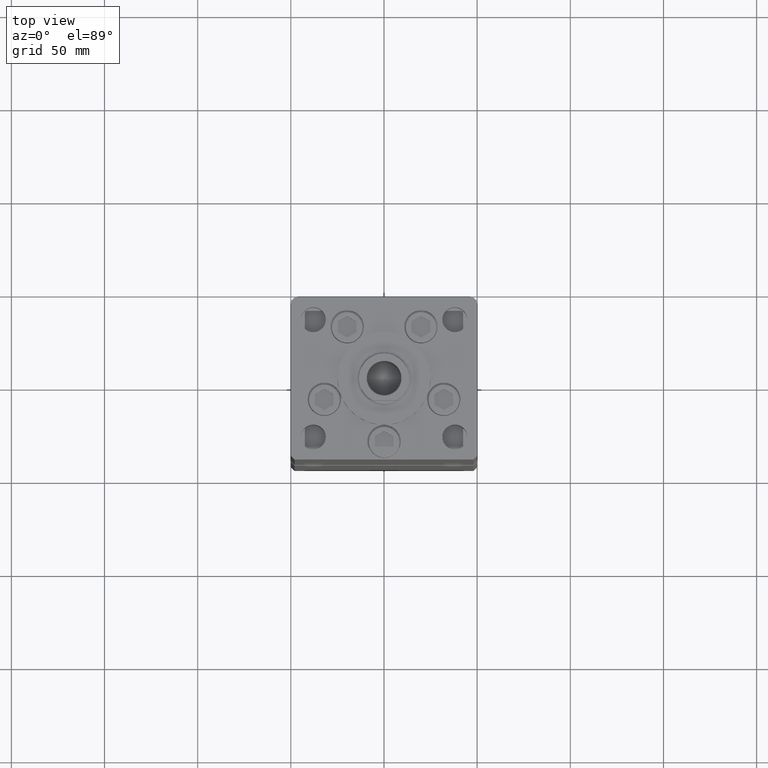
[diagram: clean part render]
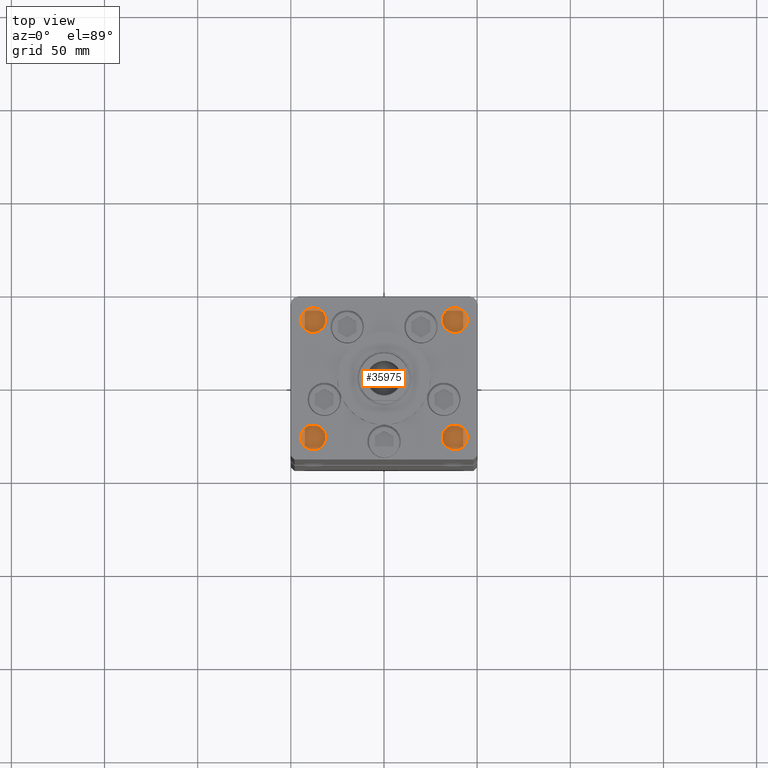
[diagram: same view with one face highlighted and labeled with its STEP entity id]
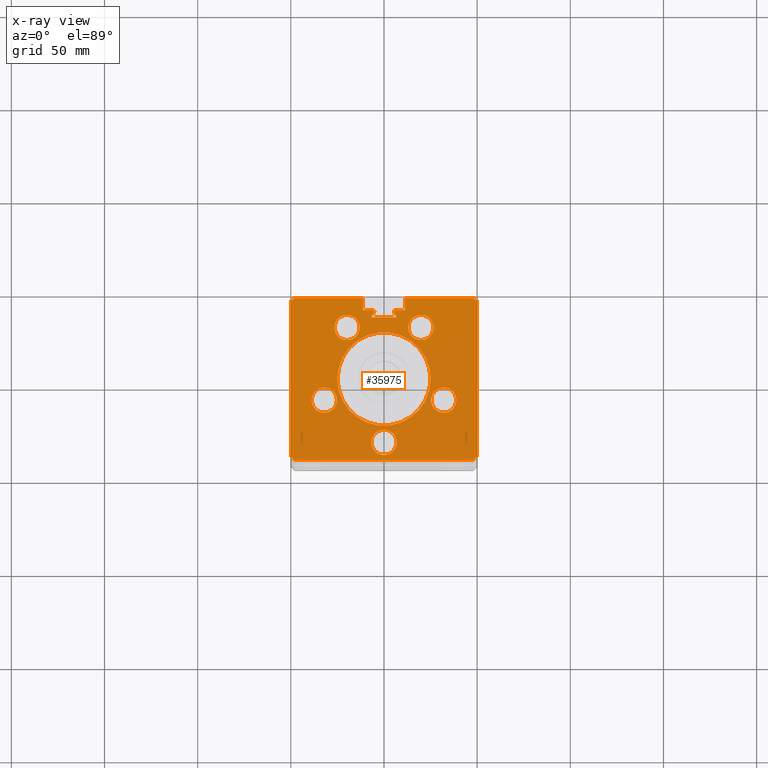
[diagram: x-ray of the same camera — body ghosted, the highlighted face saturated]
A machine part, top view. The second image highlights one B-rep face of the part: STEP entity #35975.
The next image is the same camera in x-ray: the body ghosted, the highlighted face saturated — about 0% of this face is hidden behind the body in this view.
In plain terms, the highlighted planar face has unit normal (0, 0, -1).
Its self-contained STEP definition (entity closure, byte-faithful):
#728 = EDGE_CURVE ( 'NONE', #28112, #38239, #11491, .T. ) ;
#1294 = DIRECTION ( 'NONE',  ( 1.000000000000000000, 0.000000000000000000, 0.000000000000000000 ) ) ;
#1315 = VERTEX_POINT ( 'NONE', #3791 ) ;
#1666 = VERTEX_POINT ( 'NONE', #14931 ) ;
#1694 = VECTOR ( 'NONE', #50273, 1000.000000000000000 ) ;
#1840 = DIRECTION ( 'NONE',  ( 0.000000000000000000, 0.000000000000000000, 1.000000000000000000 ) ) ;
#1846 = AXIS2_PLACEMENT_3D ( 'NONE', #32394, #16010, #28359 ) ;
#1894 = CIRCLE ( 'NONE', #31954, 6.749999999999999112 ) ;
#2059 = VERTEX_POINT ( 'NONE', #28812 ) ;
#2263 = VERTEX_POINT ( 'NONE', #13997 ) ;
#2508 = CARTESIAN_POINT ( 'NONE',  ( -5.249999999999995559, 36.06666666666599497, 318.5000000000000000 ) ) ;
#2786 = VECTOR ( 'NONE', #32028, 1000.000000000000000 ) ;
#3044 = CARTESIAN_POINT ( 'NONE',  ( 0.000000000000000000, 0.000000000000000000, 318.5000000000000000 ) ) ;
#3117 = CARTESIAN_POINT ( 'NONE',  ( 49.99999999999998579, -41.49999999999999289, 318.5000000000000000 ) ) ;
#3135 = ORIENTED_EDGE ( 'NONE', *, *, #16912, .F. ) ;
#3686 = CARTESIAN_POINT ( 'NONE',  ( 47.99999999999998579, -43.50000000000000000, 318.5000000000000000 ) ) ;
#3791 = CARTESIAN_POINT ( 'NONE',  ( -5.375042956467946276, 35.59999999999899245, 318.5000000000000000 ) ) ;
#3804 = DIRECTION ( 'NONE',  ( 1.000000000000000000, 0.000000000000000000, 0.000000000000000000 ) ) ;
#3832 = VERTEX_POINT ( 'NONE', #22457 ) ;
#3926 = VERTEX_POINT ( 'NONE', #14292 ) ;
#4072 = DIRECTION ( 'NONE',  ( 0.000000000000000000, 0.000000000000000000, 1.000000000000000000 ) ) ;
#4105 = CARTESIAN_POINT ( 'NONE',  ( -49.99999999999998579, -41.49999999999999289, 318.5000000000000000 ) ) ;
#4278 = VERTEX_POINT ( 'NONE', #43772 ) ;
#4390 = DIRECTION ( 'NONE',  ( -0.7071067811865474617, -0.7071067811865474617, 0.000000000000000000 ) ) ;
#4624 = DIRECTION ( 'NONE',  ( 0.000000000000000000, 1.000000000000000000, 0.000000000000000000 ) ) ;
#4793 = ORIENTED_EDGE ( 'NONE', *, *, #8536, .F. ) ;
#4880 = CARTESIAN_POINT ( 'NONE',  ( -11.24999999999999645, 37.00000000000000000, 318.5000000000000000 ) ) ;
#5092 = CARTESIAN_POINT ( 'NONE',  ( 32.05550741379015278, -11.33333333333334103, 318.5000000000000000 ) ) ;
#5214 = EDGE_CURVE ( 'NONE', #44600, #16733, #1894, .T. ) ;
#5218 = VECTOR ( 'NONE', #24171, 1000.000000000000114 ) ;
#5246 = AXIS2_PLACEMENT_3D ( 'NONE', #9559, #30791, #10363 ) ;
#5601 = LINE ( 'NONE', #34347, #39825 ) ;
#5705 = ORIENTED_EDGE ( 'NONE', *, *, #40347, .T. ) ;
#5961 = VERTEX_POINT ( 'NONE', #14045 ) ;
#6182 = VERTEX_POINT ( 'NONE', #16969 ) ;
#6375 = DIRECTION ( 'NONE',  ( 1.000000000000000000, 0.000000000000000000, 0.000000000000000000 ) ) ;
#6570 = PLANE ( 'NONE',  #41644 ) ;
#6689 = CARTESIAN_POINT ( 'NONE',  ( -47.99999999999998579, -43.50000000000000000, 318.5000000000000000 ) ) ;
#6758 = EDGE_CURVE ( 'NONE', #16733, #44600, #41839, .T. ) ;
#7034 = ORIENTED_EDGE ( 'NONE', *, *, #50426, .T. ) ;
#7066 = DIRECTION ( 'NONE',  ( 0.000000000000000000, 0.000000000000000000, 1.000000000000000000 ) ) ;
#7345 = CARTESIAN_POINT ( 'NONE',  ( -11.24999999999999645, 43.50000000000000000, 318.5000000000000000 ) ) ;
#7490 = EDGE_CURVE ( 'NONE', #23562, #46238, #32583, .T. ) ;
#7775 = LINE ( 'NONE', #20420, #5218 ) ;
#7823 = AXIS2_PLACEMENT_3D ( 'NONE', #39881, #28022, #52205 ) ;
#8020 = DIRECTION ( 'NONE',  ( 1.000000000000000000, 0.000000000000000000, 0.000000000000000000 ) ) ;
#8536 = EDGE_CURVE ( 'NONE', #5961, #2059, #36099, .T. ) ;
#8891 = ORIENTED_EDGE ( 'NONE', *, *, #48594, .F. ) ;
#8916 = CARTESIAN_POINT ( 'NONE',  ( -25.00000000000000000, 0.000000000000000000, 318.5000000000000000 ) ) ;
#9031 = LINE ( 'NONE', #34017, #17979 ) ;
#9043 = ORIENTED_EDGE ( 'NONE', *, *, #29598, .T. ) ;
#9244 = ORIENTED_EDGE ( 'NONE', *, *, #46327, .F. ) ;
#9413 = AXIS2_PLACEMENT_3D ( 'NONE', #43082, #7066, #18901 ) ;
#9559 = CARTESIAN_POINT ( 'NONE',  ( -32.05550741379015278, -11.33333333333334458, 318.5000000000000000 ) ) ;
#9747 = DIRECTION ( 'NONE',  ( 0.000000000000000000, 0.000000000000000000, -1.000000000000000000 ) ) ;
#10363 = DIRECTION ( 'NONE',  ( 1.000000000000000000, 0.000000000000000000, 0.000000000000000000 ) ) ;
#10508 = CARTESIAN_POINT ( 'NONE',  ( -19.82068048781374259, 27.62499999999999645, 318.5000000000000000 ) ) ;
#10512 = CARTESIAN_POINT ( 'NONE',  ( -25.30550741379015278, -11.33333333333334458, 318.5000000000000000 ) ) ;
#10558 = VECTOR ( 'NONE', #4390, 1000.000000000000114 ) ;
#11007 = DIRECTION ( 'NONE',  ( 1.000000000000000000, 0.000000000000000000, 0.000000000000000000 ) ) ;
#11401 = CARTESIAN_POINT ( 'NONE',  ( -19.82068048781374259, 27.62499999999999645, 318.5000000000000000 ) ) ;
#11475 = CIRCLE ( 'NONE', #32924, 6.749999999999999112 ) ;
#11491 = LINE ( 'NONE', #39988, #12978 ) ;
#11641 = LINE ( 'NONE', #28017, #15489 ) ;
#11711 = EDGE_CURVE ( 'NONE', #27137, #15898, #9031, .T. ) ;
#11934 = ORIENTED_EDGE ( 'NONE', *, *, #33200, .T. ) ;
#12116 = DIRECTION ( 'NONE',  ( 1.000000000000000000, 0.000000000000000000, 0.000000000000000000 ) ) ;
#12191 = CARTESIAN_POINT ( 'NONE',  ( -6.749999999999997335, -34.00000000000000000, 318.5000000000000000 ) ) ;
#12437 = LINE ( 'NONE', #48694, #48242 ) ;
#12740 = VECTOR ( 'NONE', #4624, 1000.000000000000000 ) ;
#12978 = VECTOR ( 'NONE', #43736, 1000.000000000000114 ) ;
#13198 = VERTEX_POINT ( 'NONE', #10512 ) ;
#13253 = ORIENTED_EDGE ( 'NONE', *, *, #28627, .T. ) ;
#13272 = ORIENTED_EDGE ( 'NONE', *, *, #28769, .F. ) ;
#13873 = DIRECTION ( 'NONE',  ( 1.000000000000000000, 0.000000000000000000, 0.000000000000000000 ) ) ;
#13997 = CARTESIAN_POINT ( 'NONE',  ( -38.80550741379015278, -11.33333333333334458, 318.5000000000000000 ) ) ;
#14045 = CARTESIAN_POINT ( 'NONE',  ( 11.24999999999998934, 43.50000000000000000, 318.5000000000000000 ) ) ;
#14292 = CARTESIAN_POINT ( 'NONE',  ( 49.99999999999998579, -41.49999999999999289, 318.5000000000000000 ) ) ;
#14722 = EDGE_CURVE ( 'NONE', #28071, #42560, #23958, .T. ) ;
#14741 = AXIS2_PLACEMENT_3D ( 'NONE', #10508, #23392, #47320 ) ;
#14753 = EDGE_LOOP ( 'NONE', ( #41346, #31444 ) ) ;
#14905 = FACE_BOUND ( 'NONE', #43939, .T. ) ;
#14925 = CIRCLE ( 'NONE', #42368, 6.749999999999999112 ) ;
#14931 = CARTESIAN_POINT ( 'NONE',  ( 25.00000000000000000, 3.061616997868383043E-15, 318.5000000000000000 ) ) ;
#15046 = CARTESIAN_POINT ( 'NONE',  ( 2.081899558550500280E-15, -34.00000000000000000, 318.5000000000000000 ) ) ;
#15489 = VECTOR ( 'NONE', #44403, 1000.000000000000000 ) ;
#15745 = CARTESIAN_POINT ( 'NONE',  ( 5.375042956467946276, 35.59999999999899245, 318.5000000000000000 ) ) ;
#15898 = VERTEX_POINT ( 'NONE', #18623 ) ;
#16010 = DIRECTION ( 'NONE',  ( 0.000000000000000000, 0.000000000000000000, -1.000000000000000000 ) ) ;
#16035 = VERTEX_POINT ( 'NONE', #33103 ) ;
#16079 = EDGE_CURVE ( 'NONE', #2059, #33553, #37405, .T. ) ;
#16452 = CARTESIAN_POINT ( 'NONE',  ( 48.00000000000000711, 43.50000000000000000, 318.5000000000000000 ) ) ;
#16550 = CIRCLE ( 'NONE', #17424, 0.9333333333339999260 ) ;
#16733 = VERTEX_POINT ( 'NONE', #28067 ) ;
#16739 = CARTESIAN_POINT ( 'NONE',  ( -11.24999999999999645, 0.000000000000000000, 318.5000000000000000 ) ) ;
#16912 = EDGE_CURVE ( 'NONE', #42560, #28071, #30884, .T. ) ;
#16969 = CARTESIAN_POINT ( 'NONE',  ( -13.07068048781374259, 27.62499999999999645, 318.5000000000000000 ) ) ;
#17305 = CARTESIAN_POINT ( 'NONE',  ( -48.00000000000000711, 43.50000000000000000, 318.5000000000000000 ) ) ;
#17316 = CIRCLE ( 'NONE', #5246, 6.749999999999999112 ) ;
#17337 = EDGE_CURVE ( 'NONE', #33553, #3926, #11641, .T. ) ;
#17424 = AXIS2_PLACEMENT_3D ( 'NONE', #30171, #9747, #29392 ) ;
#17446 = VECTOR ( 'NONE', #34541, 1000.000000000000000 ) ;
#17908 = CARTESIAN_POINT ( 'NONE',  ( 6.750000000000000888, -34.00000000000000000, 318.5000000000000000 ) ) ;
#17934 = LINE ( 'NONE', #46690, #20859 ) ;
#17979 = VECTOR ( 'NONE', #25424, 1000.000000000000000 ) ;
#17981 = DIRECTION ( 'NONE',  ( 1.000000000000000000, 0.000000000000000000, 0.000000000000000000 ) ) ;
#18502 = CARTESIAN_POINT ( 'NONE',  ( -26.57068048781373903, 27.62499999999999645, 318.5000000000000000 ) ) ;
#18623 = CARTESIAN_POINT ( 'NONE',  ( 6.183333333333996151, 37.00000000000000000, 318.5000000000000000 ) ) ;
#18639 = VERTEX_POINT ( 'NONE', #3686 ) ;
#18650 = CARTESIAN_POINT ( 'NONE',  ( 11.24999999999999645, 0.000000000000000000, 318.5000000000000000 ) ) ;
#18679 = AXIS2_PLACEMENT_3D ( 'NONE', #23973, #4072, #3804 ) ;
#18901 = DIRECTION ( 'NONE',  ( 1.000000000000000000, 0.000000000000000000, 0.000000000000000000 ) ) ;
#18926 = FACE_BOUND ( 'NONE', #40299, .T. ) ;
#19015 = CARTESIAN_POINT ( 'NONE',  ( -50.00000000000001421, 41.49999999999999289, 318.5000000000000000 ) ) ;
#19330 = VECTOR ( 'NONE', #44162, 1000.000000000000000 ) ;
#19346 = EDGE_LOOP ( 'NONE', ( #7034, #40043, #45656, #11934, #13253, #26213, #19967, #21444, #34095, #49374, #4793, #22391, #35307, #49706, #9043, #42127, #5705, #29132, #42757 ) ) ;
#19938 = CARTESIAN_POINT ( 'NONE',  ( 13.07068048781374081, 27.62500000000000000, 318.5000000000000000 ) ) ;
#19967 = ORIENTED_EDGE ( 'NONE', *, *, #27574, .T. ) ;
#20080 = VECTOR ( 'NONE', #25881, 1000.000000000000000 ) ;
#20138 = DIRECTION ( 'NONE',  ( 1.000000000000000000, 0.000000000000000000, 0.000000000000000000 ) ) ;
#20420 = CARTESIAN_POINT ( 'NONE',  ( -19.44653440471351757, 11.22746187336663404, 318.5000000000000000 ) ) ;
#20448 = CARTESIAN_POINT ( 'NONE',  ( -32.05550741379015278, -11.33333333333334458, 318.5000000000000000 ) ) ;
#20754 = CIRCLE ( 'NONE', #1846, 0.9333333333339999260 ) ;
#20859 = VECTOR ( 'NONE', #42910, 1000.000000000000114 ) ;
#21392 = CARTESIAN_POINT ( 'NONE',  ( 11.24999999999999645, 37.00000000000000000, 318.5000000000000000 ) ) ;
#21403 = CARTESIAN_POINT ( 'NONE',  ( -11.24999999999999645, 43.50000000000000000, 318.5000000000000000 ) ) ;
#21444 = ORIENTED_EDGE ( 'NONE', *, *, #50933, .F. ) ;
#21600 = EDGE_CURVE ( 'NONE', #35196, #36019, #20754, .T. ) ;
#22038 = EDGE_LOOP ( 'NONE', ( #13272, #45799 ) ) ;
#22391 = ORIENTED_EDGE ( 'NONE', *, *, #35117, .T. ) ;
#22457 = CARTESIAN_POINT ( 'NONE',  ( -48.00000000000000711, 43.50000000000000000, 318.5000000000000000 ) ) ;
#22492 = ORIENTED_EDGE ( 'NONE', *, *, #6758, .F. ) ;
#22573 = VERTEX_POINT ( 'NONE', #8916 ) ;
#22633 = CARTESIAN_POINT ( 'NONE',  ( -6.876153656360465050, 32.99999999999986500, 318.5000000000000000 ) ) ;
#23088 = DIRECTION ( 'NONE',  ( 0.000000000000000000, 0.000000000000000000, 1.000000000000000000 ) ) ;
#23392 = DIRECTION ( 'NONE',  ( 0.000000000000000000, 0.000000000000000000, 1.000000000000000000 ) ) ;
#23533 = EDGE_CURVE ( 'NONE', #3832, #46238, #12437, .T. ) ;
#23562 = VERTEX_POINT ( 'NONE', #4880 ) ;
#23958 = CIRCLE ( 'NONE', #39434, 6.749999999999999112 ) ;
#23973 = CARTESIAN_POINT ( 'NONE',  ( 19.82068048781374259, 27.62500000000000000, 318.5000000000000000 ) ) ;
#24159 = CIRCLE ( 'NONE', #14741, 6.749999999999999112 ) ;
#24165 = EDGE_CURVE ( 'NONE', #4278, #16035, #29420, .T. ) ;
#24171 = DIRECTION ( 'NONE',  ( 0.4999999999999987788, 0.8660254037844392627, 0.000000000000000000 ) ) ;
#24295 = CIRCLE ( 'NONE', #52602, 0.9333333333339999260 ) ;
#25121 = EDGE_LOOP ( 'NONE', ( #22492, #41922 ) ) ;
#25223 = ORIENTED_EDGE ( 'NONE', *, *, #53087, .F. ) ;
#25424 = DIRECTION ( 'NONE',  ( -1.000000000000000000, 0.000000000000000000, 0.000000000000000000 ) ) ;
#25881 = DIRECTION ( 'NONE',  ( -0.7071067811865487940, -0.7071067811865463515, 0.000000000000000000 ) ) ;
#26213 = ORIENTED_EDGE ( 'NONE', *, *, #728, .T. ) ;
#26776 = CIRCLE ( 'NONE', #41359, 6.749999999999999112 ) ;
#26789 = CARTESIAN_POINT ( 'NONE',  ( 0.000000000000000000, 0.000000000000000000, 318.5000000000000000 ) ) ;
#26983 = LINE ( 'NONE', #18650, #19330 ) ;
#27137 = VERTEX_POINT ( 'NONE', #21392 ) ;
#27574 = EDGE_CURVE ( 'NONE', #38239, #18639, #5601, .T. ) ;
#27768 = CARTESIAN_POINT ( 'NONE',  ( -6.183333333333996151, 37.00000000000000000, 318.5000000000000000 ) ) ;
#27777 = DIRECTION ( 'NONE',  ( 0.000000000000000000, 0.000000000000000000, 1.000000000000000000 ) ) ;
#27887 = CARTESIAN_POINT ( 'NONE',  ( 32.05550741379015278, -11.33333333333334103, 318.5000000000000000 ) ) ;
#28017 = CARTESIAN_POINT ( 'NONE',  ( 50.00000000000001421, 41.49999999999999289, 318.5000000000000000 ) ) ;
#28021 = EDGE_CURVE ( 'NONE', #6182, #40453, #14925, .T. ) ;
#28022 = DIRECTION ( 'NONE',  ( -0.000000000000000000, 0.000000000000000000, 1.000000000000000000 ) ) ;
#28067 = CARTESIAN_POINT ( 'NONE',  ( 26.57068048781373903, 27.62500000000000000, 318.5000000000000000 ) ) ;
#28071 = VERTEX_POINT ( 'NONE', #12191 ) ;
#28112 = VERTEX_POINT ( 'NONE', #4105 ) ;
#28359 = DIRECTION ( 'NONE',  ( 1.000000000000000000, 0.000000000000000000, 0.000000000000000000 ) ) ;
#28627 = EDGE_CURVE ( 'NONE', #51894, #28112, #52624, .T. ) ;
#28769 = EDGE_CURVE ( 'NONE', #22573, #1666, #41532, .T. ) ;
#28812 = CARTESIAN_POINT ( 'NONE',  ( 48.00000000000000711, 43.50000000000000000, 318.5000000000000000 ) ) ;
#28970 = VERTEX_POINT ( 'NONE', #22633 ) ;
#28973 = CARTESIAN_POINT ( 'NONE',  ( -50.00000000000001421, 41.49999999999999289, 318.5000000000000000 ) ) ;
#29132 = ORIENTED_EDGE ( 'NONE', *, *, #30433, .F. ) ;
#29305 = DIRECTION ( 'NONE',  ( 0.000000000000000000, 0.000000000000000000, 1.000000000000000000 ) ) ;
#29392 = DIRECTION ( 'NONE',  ( 1.000000000000000000, 0.000000000000000000, 0.000000000000000000 ) ) ;
#29398 = LINE ( 'NONE', #17305, #20080 ) ;
#29420 = CIRCLE ( 'NONE', #31988, 6.749999999999999112 ) ;
#29526 = VECTOR ( 'NONE', #36244, 1000.000000000000000 ) ;
#29598 = EDGE_CURVE ( 'NONE', #37773, #44201, #17934, .T. ) ;
#29885 = EDGE_CURVE ( 'NONE', #44201, #28970, #38049, .T. ) ;
#30171 = CARTESIAN_POINT ( 'NONE',  ( 6.183333333333996151, 36.06666666666599497, 318.5000000000000000 ) ) ;
#30433 = EDGE_CURVE ( 'NONE', #36019, #1315, #24295, .T. ) ;
#30791 = DIRECTION ( 'NONE',  ( 0.000000000000000000, 0.000000000000000000, 1.000000000000000000 ) ) ;
#30884 = CIRCLE ( 'NONE', #9413, 6.749999999999999112 ) ;
#31016 = CIRCLE ( 'NONE', #7823, 25.00000000000000000 ) ;
#31444 = ORIENTED_EDGE ( 'NONE', *, *, #24165, .F. ) ;
#31954 = AXIS2_PLACEMENT_3D ( 'NONE', #36243, #44825, #8020 ) ;
#31988 = AXIS2_PLACEMENT_3D ( 'NONE', #27887, #34290, #13873 ) ;
#32028 = DIRECTION ( 'NONE',  ( -1.000000000000000000, 0.000000000000000000, 0.000000000000000000 ) ) ;
#32071 = DIRECTION ( 'NONE',  ( 1.000000000000000000, 0.000000000000000000, 0.000000000000000000 ) ) ;
#32080 = FACE_BOUND ( 'NONE', #22038, .T. ) ;
#32394 = CARTESIAN_POINT ( 'NONE',  ( -6.183333333333996151, 36.06666666666599497, 318.5000000000000000 ) ) ;
#32583 = LINE ( 'NONE', #16739, #12740 ) ;
#32759 = CARTESIAN_POINT ( 'NONE',  ( -6.183333333333996151, 36.06666666666599497, 318.5000000000000000 ) ) ;
#32924 = AXIS2_PLACEMENT_3D ( 'NONE', #20448, #29305, #12116 ) ;
#33103 = CARTESIAN_POINT ( 'NONE',  ( 38.80550741379015278, -11.33333333333334103, 318.5000000000000000 ) ) ;
#33200 = EDGE_CURVE ( 'NONE', #3832, #51894, #29398, .T. ) ;
#33553 = VERTEX_POINT ( 'NONE', #45396 ) ;
#34017 = CARTESIAN_POINT ( 'NONE',  ( 0.000000000000000000, 37.00000000000000000, 318.5000000000000000 ) ) ;
#34095 = ORIENTED_EDGE ( 'NONE', *, *, #17337, .F. ) ;
#34290 = DIRECTION ( 'NONE',  ( 0.000000000000000000, 0.000000000000000000, 1.000000000000000000 ) ) ;
#34347 = CARTESIAN_POINT ( 'NONE',  ( -47.99999999999998579, -43.50000000000000000, 318.5000000000000000 ) ) ;
#34541 = DIRECTION ( 'NONE',  ( -1.000000000000000000, 0.000000000000000000, 0.000000000000000000 ) ) ;
#34935 = ORIENTED_EDGE ( 'NONE', *, *, #28021, .F. ) ;
#35117 = EDGE_CURVE ( 'NONE', #5961, #27137, #26983, .T. ) ;
#35196 = VERTEX_POINT ( 'NONE', #27768 ) ;
#35307 = ORIENTED_EDGE ( 'NONE', *, *, #11711, .T. ) ;
#35523 = AXIS2_PLACEMENT_3D ( 'NONE', #26789, #43181, #6375 ) ;
#35975 = ADVANCED_FACE ( 'NONE', ( #39894, #14905, #43640, #51428, #18926, #48192, #32080 ), #6570, .F. ) ;
#36019 = VERTEX_POINT ( 'NONE', #2508 ) ;
#36099 = LINE ( 'NONE', #7345, #46214 ) ;
#36243 = CARTESIAN_POINT ( 'NONE',  ( 19.82068048781374259, 27.62500000000000000, 318.5000000000000000 ) ) ;
#36244 = DIRECTION ( 'NONE',  ( 3.344045254895050973E-16, -1.000000000000000000, 0.000000000000000000 ) ) ;
#36529 = EDGE_LOOP ( 'NONE', ( #25223, #9244 ) ) ;
#37405 = LINE ( 'NONE', #16452, #1694 ) ;
#37578 = CARTESIAN_POINT ( 'NONE',  ( 6.876153656360465050, 32.99999999999986500, 318.5000000000000000 ) ) ;
#37773 = VERTEX_POINT ( 'NONE', #15745 ) ;
#38049 = LINE ( 'NONE', #46631, #17446 ) ;
#38054 = ORIENTED_EDGE ( 'NONE', *, *, #14722, .F. ) ;
#38239 = VERTEX_POINT ( 'NONE', #6689 ) ;
#39434 = AXIS2_PLACEMENT_3D ( 'NONE', #15046, #23088, #11007 ) ;
#39825 = VECTOR ( 'NONE', #1294, 1000.000000000000000 ) ;
#39881 = CARTESIAN_POINT ( 'NONE',  ( 0.000000000000000000, 0.000000000000000000, 318.5000000000000000 ) ) ;
#39894 = FACE_BOUND ( 'NONE', #36529, .T. ) ;
#39988 = CARTESIAN_POINT ( 'NONE',  ( -49.99999999999998579, -41.49999999999999289, 318.5000000000000000 ) ) ;
#40043 = ORIENTED_EDGE ( 'NONE', *, *, #7490, .T. ) ;
#40299 = EDGE_LOOP ( 'NONE', ( #34935, #8891 ) ) ;
#40347 = EDGE_CURVE ( 'NONE', #28970, #1315, #7775, .T. ) ;
#40453 = VERTEX_POINT ( 'NONE', #18502 ) ;
#41211 = LINE ( 'NONE', #3117, #10558 ) ;
#41346 = ORIENTED_EDGE ( 'NONE', *, *, #43157, .F. ) ;
#41359 = AXIS2_PLACEMENT_3D ( 'NONE', #5092, #1840, #17981 ) ;
#41532 = CIRCLE ( 'NONE', #35523, 25.00000000000000000 ) ;
#41644 = AXIS2_PLACEMENT_3D ( 'NONE', #3044, #47938, #43905 ) ;
#41816 = EDGE_CURVE ( 'NONE', #1666, #22573, #31016, .T. ) ;
#41839 = CIRCLE ( 'NONE', #18679, 6.749999999999999112 ) ;
#41922 = ORIENTED_EDGE ( 'NONE', *, *, #5214, .F. ) ;
#42127 = ORIENTED_EDGE ( 'NONE', *, *, #29885, .T. ) ;
#42368 = AXIS2_PLACEMENT_3D ( 'NONE', #11401, #27777, #44172 ) ;
#42560 = VERTEX_POINT ( 'NONE', #17908 ) ;
#42757 = ORIENTED_EDGE ( 'NONE', *, *, #21600, .F. ) ;
#42910 = DIRECTION ( 'NONE',  ( 0.4999999999999987788, -0.8660254037844392627, 0.000000000000000000 ) ) ;
#43082 = CARTESIAN_POINT ( 'NONE',  ( 2.081899558550500280E-15, -34.00000000000000000, 318.5000000000000000 ) ) ;
#43157 = EDGE_CURVE ( 'NONE', #16035, #4278, #26776, .T. ) ;
#43181 = DIRECTION ( 'NONE',  ( -0.000000000000000000, 0.000000000000000000, 1.000000000000000000 ) ) ;
#43640 = FACE_BOUND ( 'NONE', #14753, .T. ) ;
#43736 = DIRECTION ( 'NONE',  ( 0.7071067811865474617, -0.7071067811865474617, 0.000000000000000000 ) ) ;
#43772 = CARTESIAN_POINT ( 'NONE',  ( 25.30550741379015278, -11.33333333333334103, 318.5000000000000000 ) ) ;
#43905 = DIRECTION ( 'NONE',  ( -1.000000000000000000, 0.000000000000000000, -0.000000000000000000 ) ) ;
#43939 = EDGE_LOOP ( 'NONE', ( #3135, #38054 ) ) ;
#44162 = DIRECTION ( 'NONE',  ( -0.000000000000000000, -1.000000000000000000, 0.000000000000000000 ) ) ;
#44172 = DIRECTION ( 'NONE',  ( 1.000000000000000000, 0.000000000000000000, 0.000000000000000000 ) ) ;
#44201 = VERTEX_POINT ( 'NONE', #37578 ) ;
#44403 = DIRECTION ( 'NONE',  ( -3.344045254895050973E-16, -1.000000000000000000, 0.000000000000000000 ) ) ;
#44600 = VERTEX_POINT ( 'NONE', #19938 ) ;
#44825 = DIRECTION ( 'NONE',  ( 0.000000000000000000, 0.000000000000000000, 1.000000000000000000 ) ) ;
#45396 = CARTESIAN_POINT ( 'NONE',  ( 50.00000000000001421, 41.49999999999999289, 318.5000000000000000 ) ) ;
#45656 = ORIENTED_EDGE ( 'NONE', *, *, #23533, .F. ) ;
#45799 = ORIENTED_EDGE ( 'NONE', *, *, #41816, .F. ) ;
#46214 = VECTOR ( 'NONE', #32071, 1000.000000000000000 ) ;
#46238 = VERTEX_POINT ( 'NONE', #21403 ) ;
#46327 = EDGE_CURVE ( 'NONE', #2263, #13198, #17316, .T. ) ;
#46631 = CARTESIAN_POINT ( 'NONE',  ( 0.000000000000000000, 32.99999999999986500, 318.5000000000000000 ) ) ;
#46690 = CARTESIAN_POINT ( 'NONE',  ( 19.44653440471351757, 11.22746187336663404, 318.5000000000000000 ) ) ;
#47320 = DIRECTION ( 'NONE',  ( 1.000000000000000000, 0.000000000000000000, 0.000000000000000000 ) ) ;
#47938 = DIRECTION ( 'NONE',  ( 0.000000000000000000, 0.000000000000000000, -1.000000000000000000 ) ) ;
#48192 = FACE_OUTER_BOUND ( 'NONE', #19346, .T. ) ;
#48242 = VECTOR ( 'NONE', #48962, 1000.000000000000000 ) ;
#48594 = EDGE_CURVE ( 'NONE', #40453, #6182, #24159, .T. ) ;
#48694 = CARTESIAN_POINT ( 'NONE',  ( -11.24999999999999645, 43.50000000000000000, 318.5000000000000000 ) ) ;
#48929 = CARTESIAN_POINT ( 'NONE',  ( 0.000000000000000000, 37.00000000000000000, 318.5000000000000000 ) ) ;
#48962 = DIRECTION ( 'NONE',  ( 1.000000000000000000, 0.000000000000000000, 0.000000000000000000 ) ) ;
#49143 = DIRECTION ( 'NONE',  ( 0.000000000000000000, 0.000000000000000000, -1.000000000000000000 ) ) ;
#49374 = ORIENTED_EDGE ( 'NONE', *, *, #16079, .F. ) ;
#49706 = ORIENTED_EDGE ( 'NONE', *, *, #51042, .F. ) ;
#50273 = DIRECTION ( 'NONE',  ( 0.7071067811865487940, -0.7071067811865463515, 0.000000000000000000 ) ) ;
#50426 = EDGE_CURVE ( 'NONE', #35196, #23562, #52961, .T. ) ;
#50933 = EDGE_CURVE ( 'NONE', #3926, #18639, #41211, .T. ) ;
#51042 = EDGE_CURVE ( 'NONE', #37773, #15898, #16550, .T. ) ;
#51428 = FACE_BOUND ( 'NONE', #25121, .T. ) ;
#51894 = VERTEX_POINT ( 'NONE', #19015 ) ;
#52205 = DIRECTION ( 'NONE',  ( 1.000000000000000000, 0.000000000000000000, 0.000000000000000000 ) ) ;
#52602 = AXIS2_PLACEMENT_3D ( 'NONE', #32759, #49143, #20138 ) ;
#52624 = LINE ( 'NONE', #28973, #29526 ) ;
#52961 = LINE ( 'NONE', #48929, #2786 ) ;
#53087 = EDGE_CURVE ( 'NONE', #13198, #2263, #11475, .T. ) ;